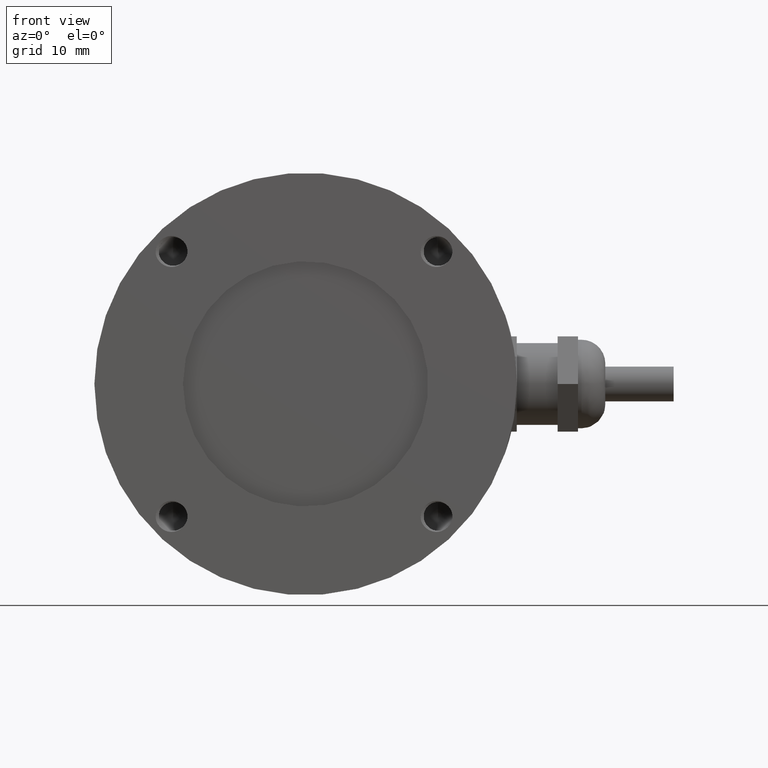
[diagram: clean part render]
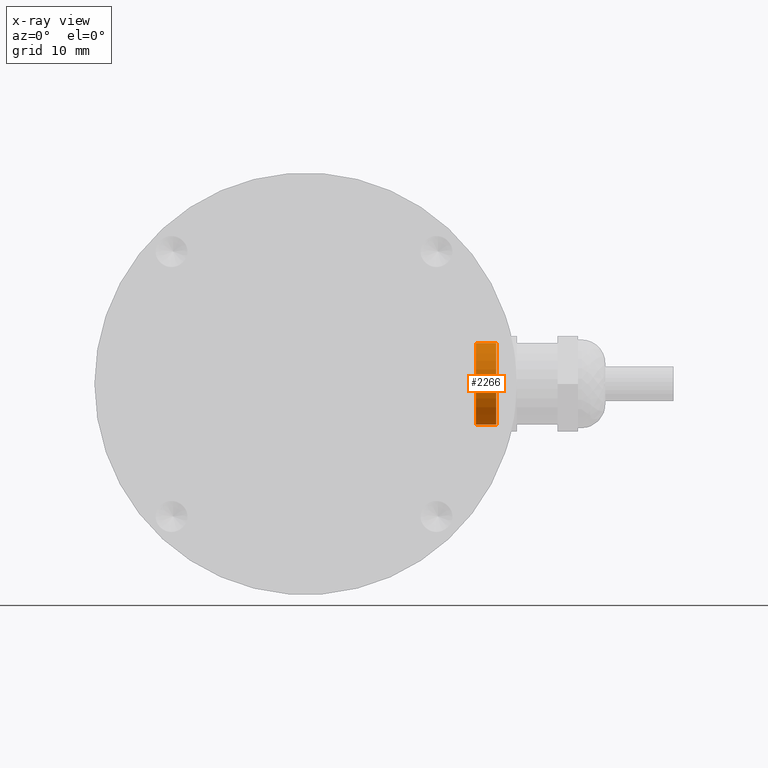
[diagram: x-ray — body ghosted, one internal face saturated and labeled with its STEP entity id]
A machine part, front view, then the same camera in x-ray: the body is ghosted and one INTERNAL B-rep face — a face not visible from any outside direction — is saturated and labeled: STEP entity #2266.
In plain terms, the highlighted cylindrical surface (bore or boss wall) has radius 6 mm, axis along (-1, 0, 0).
Its self-contained STEP definition (entity closure, byte-faithful):
#253=FACE_OUTER_BOUND('',#396,.T.);
#396=EDGE_LOOP('',(#1453,#1454,#1455,#1456));
#552=LINE('',#3115,#686);
#686=VECTOR('',#2615,6.);
#820=CIRCLE('',#2426,6.);
#821=CIRCLE('',#2427,6.);
#867=VERTEX_POINT('',#3112);
#868=VERTEX_POINT('',#3114);
#1097=EDGE_CURVE('',#867,#867,#820,.T.);
#1098=EDGE_CURVE('',#867,#868,#552,.T.);
#1099=EDGE_CURVE('',#868,#868,#821,.T.);
#1453=ORIENTED_EDGE('',*,*,#1097,.F.);
#1454=ORIENTED_EDGE('',*,*,#1098,.T.);
#1455=ORIENTED_EDGE('',*,*,#1099,.F.);
#1456=ORIENTED_EDGE('',*,*,#1098,.F.);
#2165=CYLINDRICAL_SURFACE('',#2425,6.);
#2266=ADVANCED_FACE('',(#253),#2165,.T.);
#2425=AXIS2_PLACEMENT_3D('',#3111,#2611,#2612);
#2426=AXIS2_PLACEMENT_3D('',#3113,#2613,#2614);
#2427=AXIS2_PLACEMENT_3D('',#3116,#2616,#2617);
#2611=DIRECTION('center_axis',(-1.,0.,0.));
#2612=DIRECTION('ref_axis',(0.,0.,1.));
#2613=DIRECTION('center_axis',(-1.,0.,0.));
#2614=DIRECTION('ref_axis',(0.,0.,1.));
#2615=DIRECTION('',(1.,0.,0.));
#2616=DIRECTION('center_axis',(1.,0.,0.));
#2617=DIRECTION('ref_axis',(0.,0.,1.));
#3111=CARTESIAN_POINT('Origin',(0.,0.,0.));
#3112=CARTESIAN_POINT('',(-3.,-7.34788079488412E-16,-6.));
#3113=CARTESIAN_POINT('Origin',(-3.,0.,0.));
#3114=CARTESIAN_POINT('',(0.,-7.34788079488412E-16,-6.));
#3115=CARTESIAN_POINT('',(0.,-7.34788079488412E-16,-6.));
#3116=CARTESIAN_POINT('Origin',(0.,0.,0.));